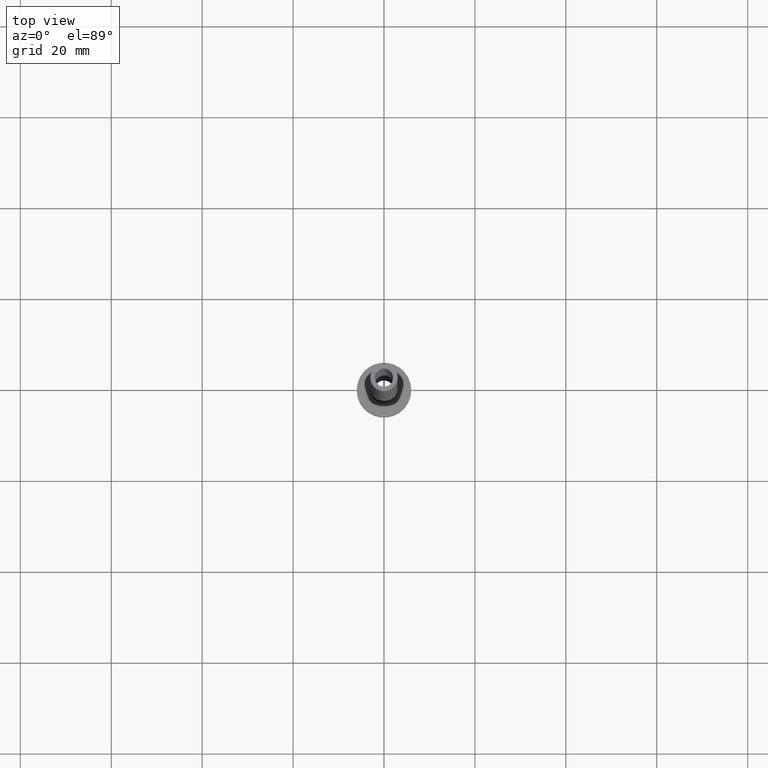
[diagram: clean part render]
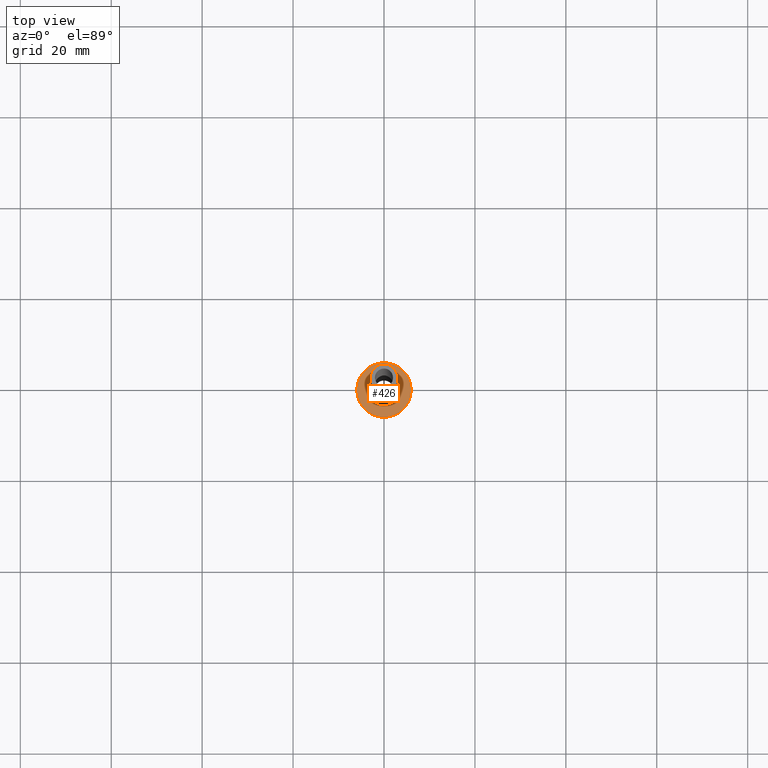
[diagram: same view with one face highlighted and labeled with its STEP entity id]
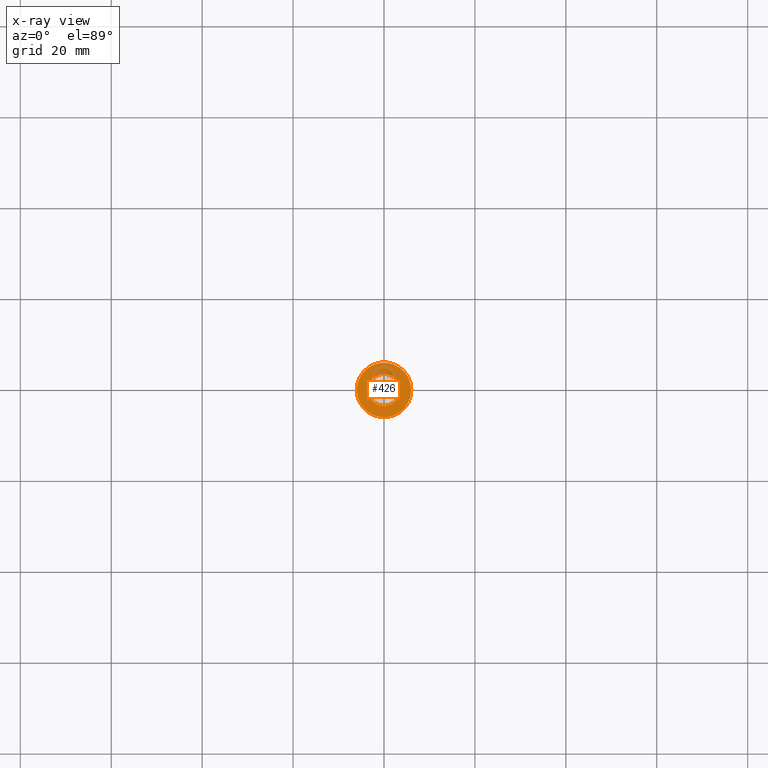
[diagram: x-ray of the same camera — body ghosted, the highlighted face saturated]
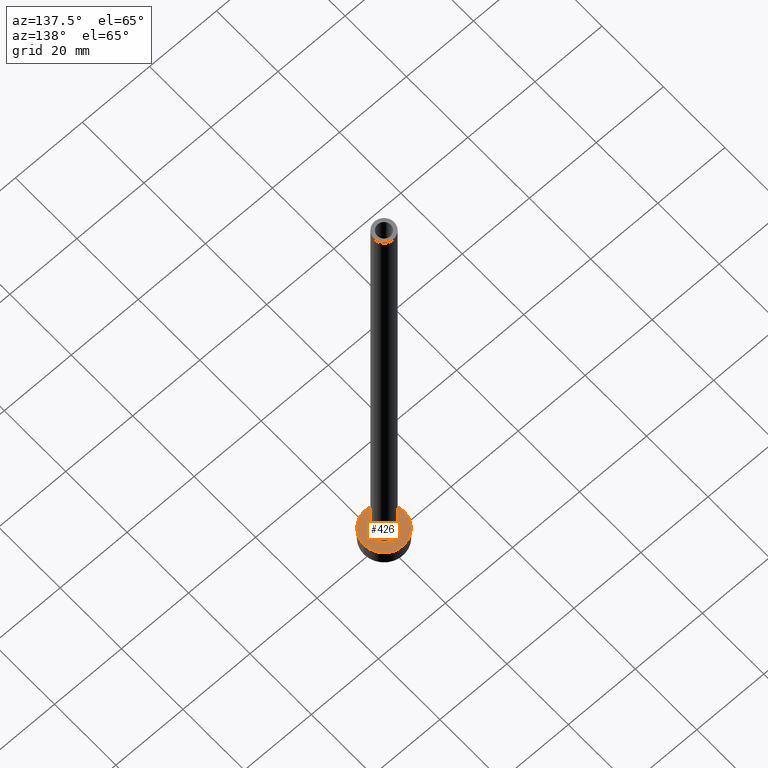
[diagram: same view with one face highlighted and labeled with its STEP entity id]
A machine part, top view. The second image highlights one B-rep face of the part: STEP entity #426.
The next image is the same camera in x-ray: the body ghosted, the highlighted face saturated — about 17% of this face is hidden behind the body in this view.
A second angle (auxiliary view) of the same face is appended — the face is thin or edge-on in the first view.
In plain terms, the highlighted planar face has unit normal (0, 0, 1).
Its self-contained STEP definition (entity closure, byte-faithful):
#11 = FACE_BOUND ( 'NONE', #283, .T. ) ;
#14 = CARTESIAN_POINT ( 'NONE',  ( 0.000000000000000000, 0.000000000000000000, 5.000000000000000000 ) ) ;
#16 = AXIS2_PLACEMENT_3D ( 'NONE', #256, #228, #370 ) ;
#19 = DIRECTION ( 'NONE',  ( 1.000000000000000000, 0.000000000000000000, 0.000000000000000000 ) ) ;
#23 = CARTESIAN_POINT ( 'NONE',  ( 3.500000000000000444, 0.000000000000000000, 5.000000000000002665 ) ) ;
#50 = DIRECTION ( 'NONE',  ( 1.000000000000000000, 0.000000000000000000, -0.000000000000000000 ) ) ;
#55 = ORIENTED_EDGE ( 'NONE', *, *, #180, .T. ) ;
#68 = VERTEX_POINT ( 'NONE', #23 ) ;
#97 = DIRECTION ( 'NONE',  ( 1.000000000000000000, 0.000000000000000000, 0.000000000000000000 ) ) ;
#114 = AXIS2_PLACEMENT_3D ( 'NONE', #285, #146, #97 ) ;
#132 = ORIENTED_EDGE ( 'NONE', *, *, #168, .T. ) ;
#142 = CIRCLE ( 'NONE', #16, 6.000000000000000888 ) ;
#146 = DIRECTION ( 'NONE',  ( -0.000000000000000000, -0.000000000000000000, -1.000000000000000000 ) ) ;
#151 = AXIS2_PLACEMENT_3D ( 'NONE', #227, #257, #50 ) ;
#152 = PLANE ( 'NONE',  #151 ) ;
#158 = DIRECTION ( 'NONE',  ( -0.000000000000000000, -0.000000000000000000, -1.000000000000000000 ) ) ;
#168 = EDGE_CURVE ( 'NONE', #326, #460, #428, .T. ) ;
#175 = AXIS2_PLACEMENT_3D ( 'NONE', #189, #158, #19 ) ;
#177 = EDGE_LOOP ( 'NONE', ( #55, #132 ) ) ;
#180 = EDGE_CURVE ( 'NONE', #460, #326, #142, .T. ) ;
#182 = DIRECTION ( 'NONE',  ( 1.000000000000000000, 0.000000000000000000, 0.000000000000000000 ) ) ;
#189 = CARTESIAN_POINT ( 'NONE',  ( 0.000000000000000000, 0.000000000000000000, 5.000000000000000000 ) ) ;
#193 = DIRECTION ( 'NONE',  ( 0.000000000000000000, 0.000000000000000000, 1.000000000000000000 ) ) ;
#199 = EDGE_CURVE ( 'NONE', #68, #430, #441, .T. ) ;
#227 = CARTESIAN_POINT ( 'NONE',  ( 0.000000000000000000, 0.000000000000000000, 5.000000000000000000 ) ) ;
#228 = DIRECTION ( 'NONE',  ( 0.000000000000000000, 0.000000000000000000, 1.000000000000000000 ) ) ;
#238 = AXIS2_PLACEMENT_3D ( 'NONE', #14, #193, #182 ) ;
#256 = CARTESIAN_POINT ( 'NONE',  ( 0.000000000000000000, 0.000000000000000000, 5.000000000000000000 ) ) ;
#257 = DIRECTION ( 'NONE',  ( 0.000000000000000000, 0.000000000000000000, 1.000000000000000000 ) ) ;
#260 = CARTESIAN_POINT ( 'NONE',  ( -3.500000000000000444, 4.286263797015737088E-16, 5.000000000000002665 ) ) ;
#282 = ORIENTED_EDGE ( 'NONE', *, *, #413, .T. ) ;
#283 = EDGE_LOOP ( 'NONE', ( #392, #282 ) ) ;
#284 = CARTESIAN_POINT ( 'NONE',  ( 6.000000000000000888, 7.347880794884120722E-16, 5.000000000000000000 ) ) ;
#285 = CARTESIAN_POINT ( 'NONE',  ( 0.000000000000000000, 0.000000000000000000, 5.000000000000000000 ) ) ;
#316 = CIRCLE ( 'NONE', #114, 3.500000000000000444 ) ;
#326 = VERTEX_POINT ( 'NONE', #284 ) ;
#334 = CARTESIAN_POINT ( 'NONE',  ( -6.000000000000000888, 0.000000000000000000, 5.000000000000000000 ) ) ;
#370 = DIRECTION ( 'NONE',  ( 1.000000000000000000, 0.000000000000000000, 0.000000000000000000 ) ) ;
#392 = ORIENTED_EDGE ( 'NONE', *, *, #199, .T. ) ;
#405 = FACE_OUTER_BOUND ( 'NONE', #177, .T. ) ;
#413 = EDGE_CURVE ( 'NONE', #430, #68, #316, .T. ) ;
#426 = ADVANCED_FACE ( 'NONE', ( #11, #405 ), #152, .T. ) ;
#428 = CIRCLE ( 'NONE', #238, 6.000000000000000888 ) ;
#430 = VERTEX_POINT ( 'NONE', #260 ) ;
#441 = CIRCLE ( 'NONE', #175, 3.500000000000000444 ) ;
#460 = VERTEX_POINT ( 'NONE', #334 ) ;